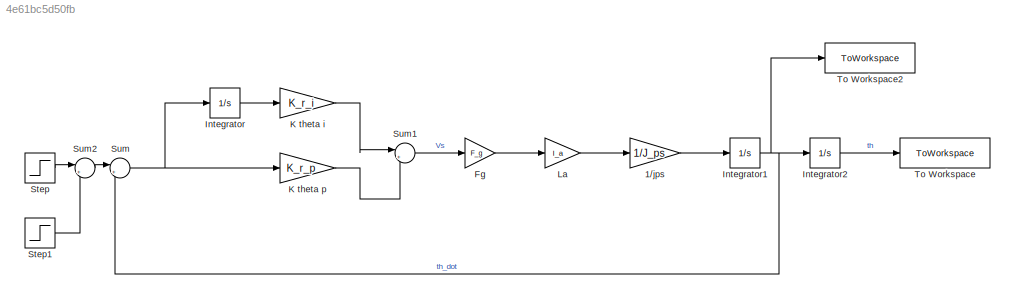
MODEL slx_4e61bc5d50fb
KIND model
CONFIG AbsTol = auto
CONFIG EnableMultiTasking = off
CONFIG FixedStep = auto
CONFIG MaxStep = auto
CONFIG MinStep = auto
CONFIG RelTol = 1e-3
CONFIG SampleTimeConstraint = Unconstrained
CONFIG SolverName = VariableStepAuto
CONFIG StartTime = 0.0
CONFIG StopTime = 20
BLOCK [Gain] 1//jps
  Gain = 1/J_ps
BLOCK [Gain] Fg
  Gain = F_g
BLOCK [Integrator] Integrator
  Ports = [1, 1]
BLOCK [Integrator] Integrator1
  Ports = [1, 1]
BLOCK [Integrator] Integrator2
  Ports = [1, 1]
BLOCK [Gain] K theta i
  Gain = K_r_i
BLOCK [Gain] K theta p
  Gain = K_r_p
BLOCK [Gain] La
  Gain = l_a
BLOCK [Step] Step
  After = deg2rad(10)
  SampleTime = 0.01
  Time = 0
BLOCK [Step] Step1
  After = deg2rad(10)
  SampleTime = 0.01
  Time = 10
BLOCK [Sum] Sum
  Inputs = |+-
  Ports = [2, 1]
BLOCK [Sum] Sum1
  Inputs = |++
  Ports = [2, 1]
BLOCK [Sum] Sum2
  Inputs = |+-
  Ports = [2, 1]
BLOCK [ToWorkspace] To Workspace
  FixptAsFi = on
  MaxDataPoints = inf
  Ports = [1]
  SampleTime = -1
  VariableName = yaw_out
BLOCK [ToWorkspace] To Workspace2
  FixptAsFi = on
  MaxDataPoints = inf
  Ports = [1]
  SampleTime = -1
  VariableName = yaw_rate
LINE 1//jps:1 -> Integrator1:1
LINE Fg:1 -> La:1
NET Integrator1:1 -> Integrator2:1, Sum:2, To Workspace2:1
LINE Integrator2:1 -> To Workspace:1
LINE Integrator:1 -> K theta i:1
LINE K theta i:1 -> Sum1:1
LINE K theta p:1 -> Sum1:2
LINE La:1 -> 1//jps:1
LINE Step1:1 -> Sum2:2
LINE Step:1 -> Sum2:1
LINE Sum1:1 -> Fg:1
LINE Sum2:1 -> Sum:1
NET Sum:1 -> Integrator:1, K theta p:1
note: NET lines group one-source signal fan-out (src -> all destinations, sorted); 1:1 wires keep LINE
